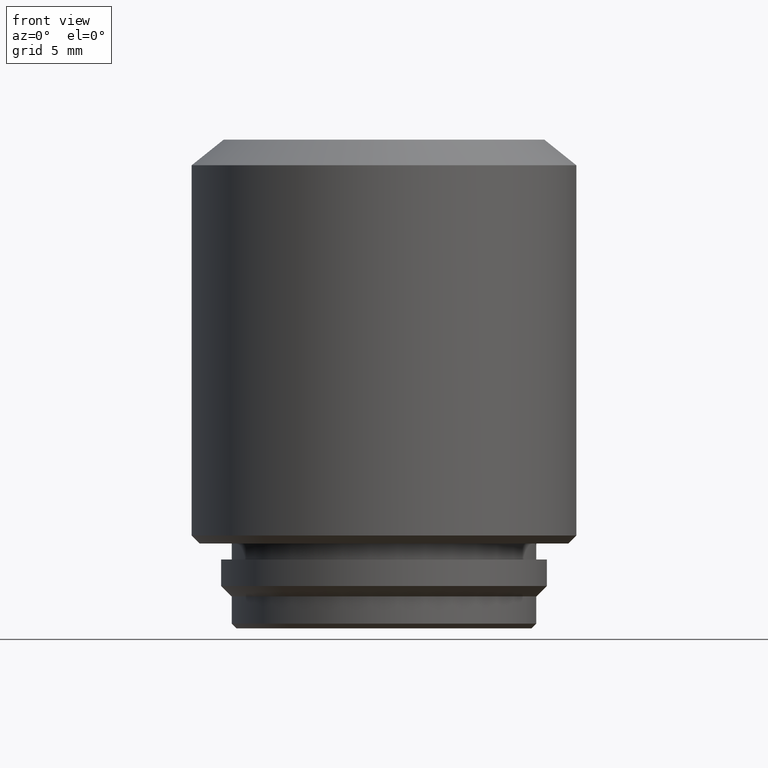
[diagram: clean part render]
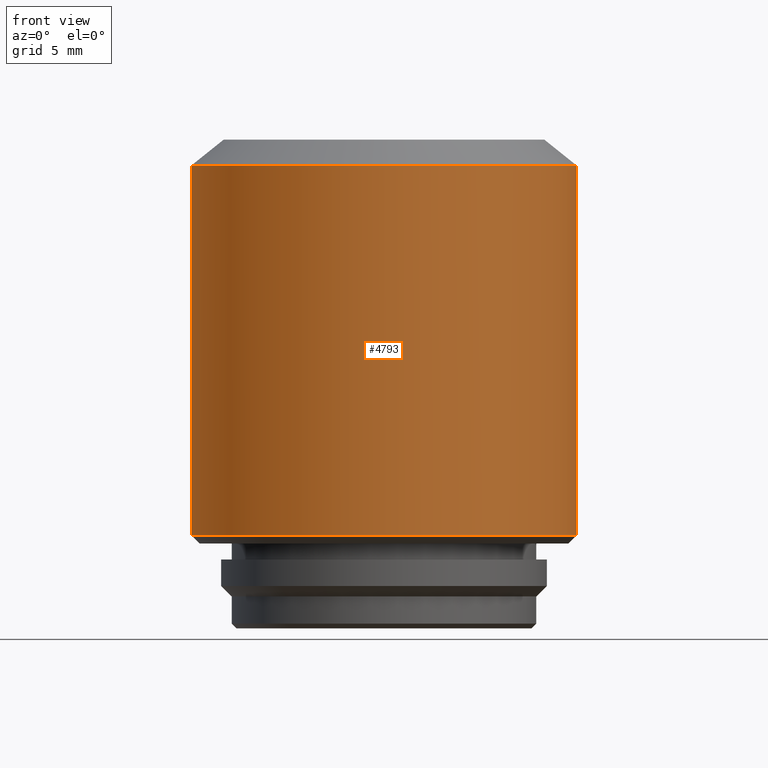
[diagram: same view with one face highlighted and labeled with its STEP entity id]
A machine part, front view. The second image highlights one B-rep face of the part: STEP entity #4793.
In plain terms, the highlighted cylindrical surface (partial cylindrical patch) has radius 12 mm, axis along (0, 0, -1).
Its self-contained STEP definition (entity closure, byte-faithful):
#117 = ORIENTED_EDGE ( 'NONE', *, *, #5245, .T. ) ;
#742 = CARTESIAN_POINT ( 'NONE',  ( -12.00000000000000000, 0.000000000000000000, 30.50000000000000000 ) ) ;
#1039 = ORIENTED_EDGE ( 'NONE', *, *, #14443, .T. ) ;
#1170 = EDGE_LOOP ( 'NONE', ( #2833, #1039, #117, #5644 ) ) ;
#1377 = DIRECTION ( 'NONE',  ( 0.000000000000000000, 0.000000000000000000, 1.000000000000000000 ) ) ;
#1752 = VECTOR ( 'NONE', #12631, 1000.000000000000000 ) ;
#1819 = LINE ( 'NONE', #742, #13511 ) ;
#2138 = EDGE_CURVE ( 'NONE', #14899, #19045, #16516, .T. ) ;
#2833 = ORIENTED_EDGE ( 'NONE', *, *, #8950, .F. ) ;
#3615 = CARTESIAN_POINT ( 'NONE',  ( 11.99999999999999822, 1.469576158976823750E-15, 28.89999999999999858 ) ) ;
#4005 = CYLINDRICAL_SURFACE ( 'NONE', #15730, 12.00000000000000000 ) ;
#4793 = ADVANCED_FACE ( 'NONE', ( #10061 ), #4005, .T. ) ;
#5245 = EDGE_CURVE ( 'NONE', #11301, #14899, #1819, .T. ) ;
#5644 = ORIENTED_EDGE ( 'NONE', *, *, #2138, .T. ) ;
#7172 = AXIS2_PLACEMENT_3D ( 'NONE', #17584, #1377, #11841 ) ;
#8590 = CARTESIAN_POINT ( 'NONE',  ( 0.000000000000000000, 0.000000000000000000, 28.89999999999999858 ) ) ;
#8791 = CARTESIAN_POINT ( 'NONE',  ( 0.000000000000000000, 0.000000000000000000, 30.50000000000000000 ) ) ;
#8877 = DIRECTION ( 'NONE',  ( 1.000000000000000000, 0.000000000000000000, 0.000000000000000000 ) ) ;
#8950 = EDGE_CURVE ( 'NONE', #12236, #19045, #12540, .T. ) ;
#10061 = FACE_OUTER_BOUND ( 'NONE', #1170, .T. ) ;
#11167 = CARTESIAN_POINT ( 'NONE',  ( 12.00000000000000000, 1.469576158976823947E-15, 30.50000000000000000 ) ) ;
#11301 = VERTEX_POINT ( 'NONE', #18858 ) ;
#11841 = DIRECTION ( 'NONE',  ( -1.000000000000000000, 0.000000000000000000, 0.000000000000000000 ) ) ;
#12065 = CIRCLE ( 'NONE', #14560, 12.00000000000000000 ) ;
#12236 = VERTEX_POINT ( 'NONE', #3615 ) ;
#12540 = LINE ( 'NONE', #11167, #1752 ) ;
#12631 = DIRECTION ( 'NONE',  ( 0.000000000000000000, 0.000000000000000000, -1.000000000000000000 ) ) ;
#13357 = CARTESIAN_POINT ( 'NONE',  ( 11.99999999999999645, 0.000000000000000000, 5.799999999999999822 ) ) ;
#13511 = VECTOR ( 'NONE', #14130, 1000.000000000000000 ) ;
#14130 = DIRECTION ( 'NONE',  ( 0.000000000000000000, 0.000000000000000000, -1.000000000000000000 ) ) ;
#14443 = EDGE_CURVE ( 'NONE', #12236, #11301, #12065, .T. ) ;
#14560 = AXIS2_PLACEMENT_3D ( 'NONE', #8590, #16192, #8877 ) ;
#14740 = DIRECTION ( 'NONE',  ( 0.000000000000000000, 0.000000000000000000, -1.000000000000000000 ) ) ;
#14899 = VERTEX_POINT ( 'NONE', #18881 ) ;
#15730 = AXIS2_PLACEMENT_3D ( 'NONE', #8791, #14740, #16011 ) ;
#16011 = DIRECTION ( 'NONE',  ( -1.000000000000000000, 0.000000000000000000, 0.000000000000000000 ) ) ;
#16192 = DIRECTION ( 'NONE',  ( 0.000000000000000000, 0.000000000000000000, -1.000000000000000000 ) ) ;
#16516 = CIRCLE ( 'NONE', #7172, 12.00000000000000000 ) ;
#17584 = CARTESIAN_POINT ( 'NONE',  ( 0.000000000000000000, 0.000000000000000000, 5.799999999999999822 ) ) ;
#18858 = CARTESIAN_POINT ( 'NONE',  ( -11.99999999999999822, 0.000000000000000000, 28.89999999999999858 ) ) ;
#18881 = CARTESIAN_POINT ( 'NONE',  ( -11.99999999999999645, 1.469576158976823553E-15, 5.799999999999999822 ) ) ;
#19045 = VERTEX_POINT ( 'NONE', #13357 ) ;